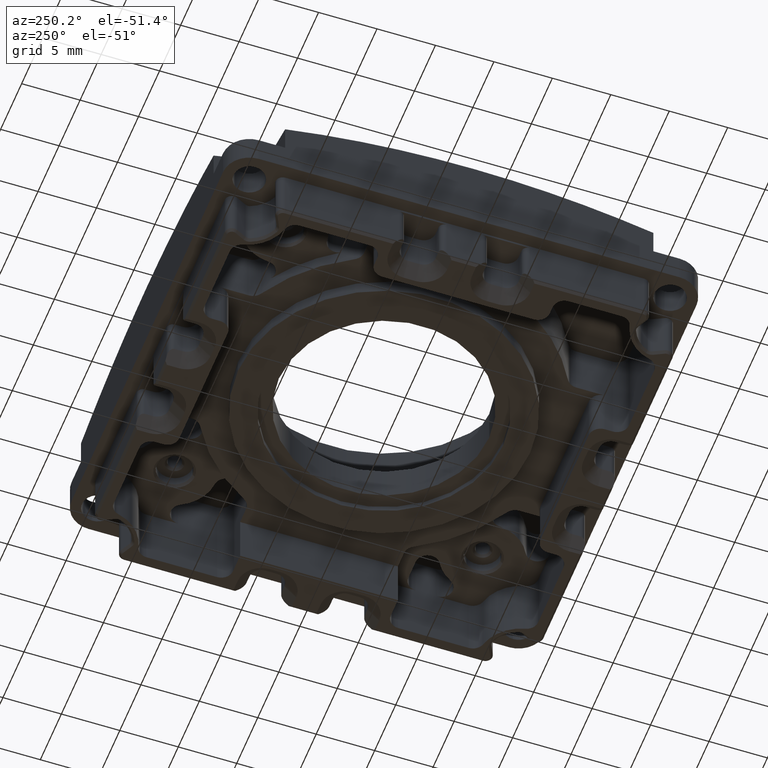
[diagram: clean part render]
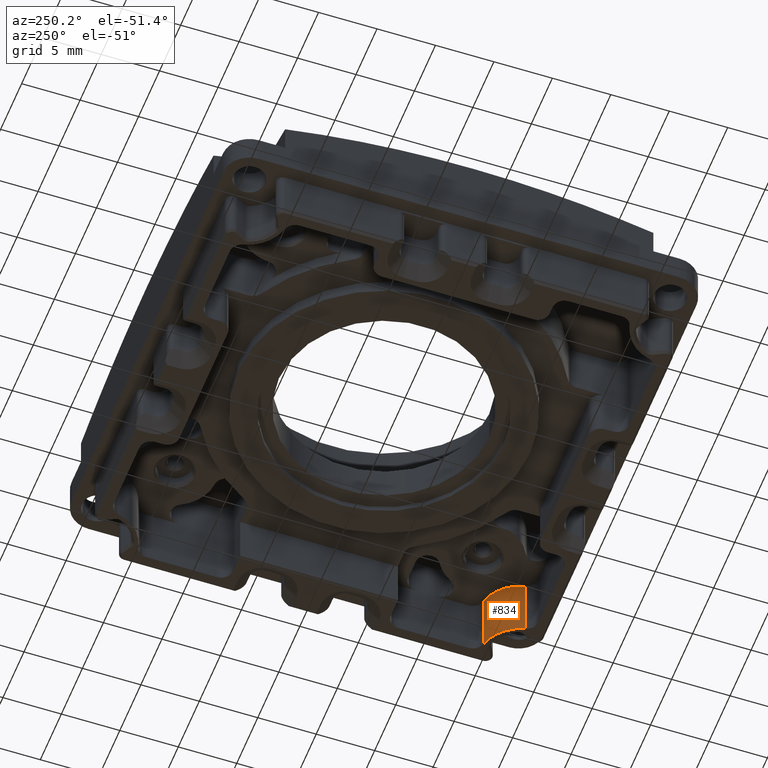
[diagram: same view with one face highlighted and labeled with its STEP entity id]
A machine part, auxiliary view. The second image highlights one B-rep face of the part: STEP entity #834.
In plain terms, the highlighted cylindrical surface (partial cylindrical patch) has radius 3.6 mm, axis along (0, 0, 1).
Its self-contained STEP definition (entity closure, byte-faithful):
#511=CYLINDRICAL_SURFACE('',#10719,3.60000000000001);
#834=ADVANCED_FACE('',(#1259),#511,.T.);
#1259=FACE_OUTER_BOUND('',#1720,.F.);
#1720=EDGE_LOOP('',(#3310,#3311,#3312,#3313));
#3310=ORIENTED_EDGE('',*,*,#7708,.T.);
#3311=ORIENTED_EDGE('',*,*,#7717,.F.);
#3312=ORIENTED_EDGE('',*,*,#7285,.T.);
#3313=ORIENTED_EDGE('',*,*,#7716,.T.);
#6694=CIRCLE('',#10263,3.60000000000001);
#6791=CIRCLE('',#10360,3.60000000000001);
#7285=EDGE_CURVE('',#9691,#9690,#6694,.T.);
#7708=EDGE_CURVE('',#9515,#9514,#6791,.T.);
#7716=EDGE_CURVE('',#9690,#9515,#8514,.T.);
#7717=EDGE_CURVE('',#9691,#9514,#8515,.T.);
#8514=LINE('',#15076,#9190);
#8515=LINE('',#15077,#9191);
#9190=VECTOR('',#11926,5.5);
#9191=VECTOR('',#11927,5.5);
#9514=VERTEX_POINT('',#13350);
#9515=VERTEX_POINT('',#13351);
#9690=VERTEX_POINT('',#13526);
#9691=VERTEX_POINT('',#13527);
#10263=AXIS2_PLACEMENT_3D('',#14645,#11394,#11395);
#10360=AXIS2_PLACEMENT_3D('',#15068,#11914,#11915);
#10719=AXIS2_PLACEMENT_3D('',#15618,#12823,#12824);
#11394=DIRECTION('',(0.,0.,-1.));
#11395=DIRECTION('',(-0.970987453659692,0.239130434774554,0.));
#11914=DIRECTION('',(0.,0.,1.));
#11915=DIRECTION('',(-0.239130434803043,0.970987453652676,0.));
#11926=DIRECTION('',(0.,0.,1.));
#11927=DIRECTION('',(0.,0.,1.));
#12823=DIRECTION('',(0.,0.,1.));
#12824=DIRECTION('',(-0.239130434803043,0.970987453652676,0.));
#13350=CARTESIAN_POINT('',(14.7544453077722,-17.3891267370226,1.15000000000002));
#13351=CARTESIAN_POINT('',(17.3891305756559,-14.7544414690621,1.15000000000002));
#13526=CARTESIAN_POINT('',(17.3891305756559,-14.7544414690621,-4.34999999999998));
#13527=CARTESIAN_POINT('',(14.7544453077722,-17.3891267370225,-4.34999999999998));
#14645=CARTESIAN_POINT('',(18.2500001409468,-18.2499963022117,-4.34999999999998));
#15068=CARTESIAN_POINT('',(18.2500001409468,-18.2499963022117,1.15000000000002));
#15076=CARTESIAN_POINT('',(17.3891305756559,-14.7544414690621,-4.34999999999998));
#15077=CARTESIAN_POINT('',(14.754445307772,-17.3891267370234,-4.34999999999998));
#15618=CARTESIAN_POINT('',(18.2500001409468,-18.2499963022117,-4.34999999999998));